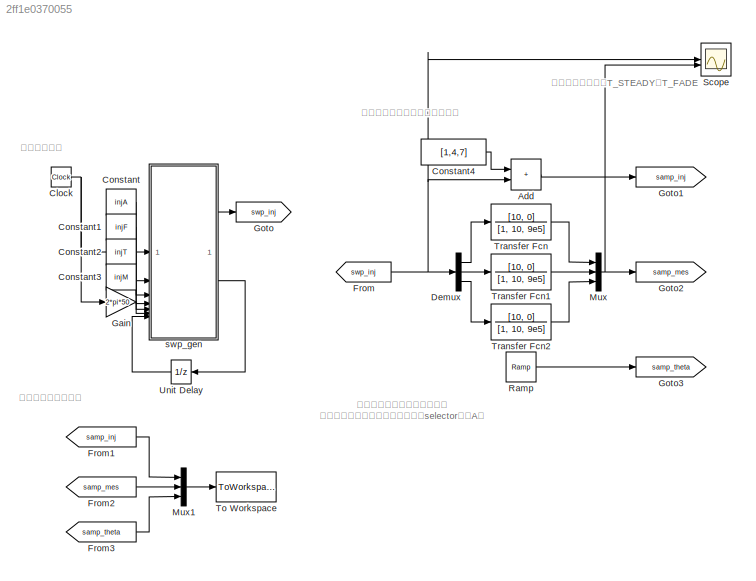
MODEL slx_2ff1e0370055
KIND model
CONFIG AbsTol = auto
CONFIG EnableMultiTasking = off
CONFIG FixedStep = 1e-6
CONFIG InitFcn = t_test = 1.14;
CONFIG MaxStep = 1e-6
CONFIG MinStep = auto
CONFIG RelTol = 1e-3
CONFIG SampleTimeConstraint = Unconstrained
CONFIG SolverName = FixedStepAuto
CONFIG StartTime = 0.0
CONFIG StopTime = runT
BLOCK [Sum] Add
  IconShape = rectangular
BLOCK [Clock] Clock
BLOCK [Constant] Constant
  Value = injA
BLOCK [Constant] Constant1
  Value = injF
BLOCK [Constant] Constant2
  Value = injT
BLOCK [Constant] Constant3
  Value = injM
BLOCK [Constant] Constant4
  Value = [1,4,7]
BLOCK [Demux] Demux
  Outputs = 3
BLOCK [From] From
  GotoTag = swp_inj
BLOCK [From] From1
  GotoTag = samp_inj
BLOCK [From] From2
  GotoTag = samp_mes
BLOCK [From] From3
  GotoTag = samp_theta
BLOCK [Gain] Gain
  Gain = 2*pi*50
BLOCK [Goto] Goto
  GotoTag = swp_inj
BLOCK [Goto] Goto1
  GotoTag = samp_inj
BLOCK [Goto] Goto2
  GotoTag = samp_mes
BLOCK [Goto] Goto3
  GotoTag = samp_theta
BLOCK [Mux] Mux
  DisplayOption = bar
  Inputs = 3
BLOCK [Mux] Mux1
  DisplayOption = bar
  Inputs = 3
BLOCK [Reference] Ramp  REF=simulink/Sources/Ramp
  SourceBlock = simulink/Sources/Ramp
  SourceType = Ramp
BLOCK [Scope] Scope
  Commented = on
  Floating = off
  NumInputPorts = 2
  ScopeSpecificationString = Simulink.scopes.TimeScopeBlockCfg('CurrentConfiguration', extmgr.ConfigurationSet(extmgr.Configuration('Core','General UI',true),extmgr.Configuration('Core','Source UI',true),extmgr.Configuration('Sources','WiredSimulink',true),extmgr.Configuration('Visuals','Time Domain',true,'SerializedDisplays',{struct('MinYLimReal','-3.94693','MaxYLimReal','4.06742','YLabelReal','','MinYLimMag','0.00000','MaxY...<+2271ch>
BLOCK [ToWorkspace] To Workspace
  FixptAsFi = on
  MaxDataPoints = inf
  SampleTime = -1
  SaveFormat = Structure With Time
  VariableName = freq_swp
BLOCK [TransferFcn] Transfer Fcn
  Denominator = [1, 10, 9e5]
  Numerator = [10, 0]
BLOCK [TransferFcn] Transfer Fcn1
  Denominator = [1, 10, 9e5]
  Numerator = [10, 0]
BLOCK [TransferFcn] Transfer Fcn2
  Denominator = [1, 10, 9e5]
  Numerator = [10, 0]
BLOCK [UnitDelay] Unit Delay
  HasFrameUpgradeWarning = on
  InitialCondition = 1
  SampleTime = -1
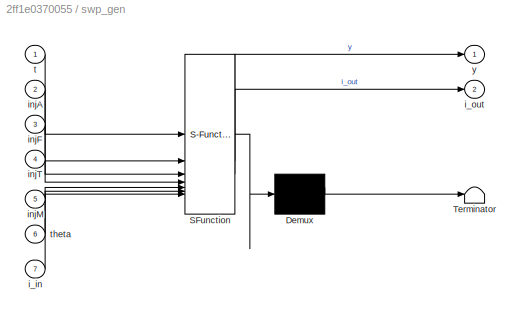
BLOCK [SubSystem] swp_gen
  ErrorFcn = Stateflow.Translate.translate
  PermitHierarchicalResolution = ExplicitOnly
  SFBlockType = MATLAB Function
  TreatAsAtomicUnit = on
BLOCK [Demux] swp_gen/ Demux 
  Outputs = 1
BLOCK [S-Function] swp_gen/ SFunction 
  EnableBusSupport = on
  FunctionName = sf_sfun
  PortCounts = [7 3]
  SFcnIsStateOwnerBlock = off
  SFunctionDeploymentMode = off
  Tag = Stateflow S-Function 2
BLOCK [Terminator] swp_gen/ Terminator 
BLOCK [Inport] swp_gen/i_in
  Port = 7
BLOCK [Outport] swp_gen/i_out
  Port = 2
BLOCK [Inport] swp_gen/injA
  Port = 2
BLOCK [Inport] swp_gen/injF
  Port = 3
BLOCK [Inport] swp_gen/injM
  Port = 5
BLOCK [Inport] swp_gen/injT
  Port = 4
BLOCK [Inport] swp_gen/t
BLOCK [Inport] swp_gen/theta
  Port = 6
BLOCK [Outport] swp_gen/y
ANNOTATION (root): 扫频使用的测量环节
ANNOTATION (root): 扰动注入固定为三相的信号。 如果你需要用单相注入，请加一个selector取用A相
ANNOTATION (root): 扰动注入至的，假设的被测系统
ANNOTATION (root): 扰动生成环节
ANNOTATION (root): 测试用。用来估计T_STEADY和T_FADE
LINE Add:1 -> Goto1:1
NET Clock:1 -> Gain:1, swp_gen:1
LINE Constant1:1 -> swp_gen:3
LINE Constant2:1 -> swp_gen:4
LINE Constant3:1 -> swp_gen:5
LINE Constant4:1 -> Add:1
LINE Constant:1 -> swp_gen:2
LINE Demux:1 -> Transfer Fcn:1
LINE Demux:2 -> Transfer Fcn1:1
LINE Demux:3 -> Transfer Fcn2:1
LINE From1:1 -> Mux1:1
LINE From2:1 -> Mux1:2
LINE From3:1 -> Mux1:3
NET From:1 -> Add:2, Demux:1, Scope:1
LINE Gain:1 -> swp_gen:6
LINE Mux1:1 -> To Workspace:1
NET Mux:1 -> Goto2:1, Scope:2
LINE Ramp:1 -> Goto3:1
LINE Transfer Fcn1:1 -> Mux:2
LINE Transfer Fcn2:1 -> Mux:3
LINE Transfer Fcn:1 -> Mux:1
LINE Unit Delay:1 -> swp_gen:7
LINE swp_gen:1 -> Goto:1
LINE swp_gen:2 -> Unit Delay:1
note: NET lines group one-source signal fan-out (src -> all destinations, sorted); 1:1 wires keep LINE
CHART swp_gen states=1 transitions=1
  STATE_LABEL 'eML_blk_kernel()'
  STATE_LABEL 'SCRIPT:\nfunction [y, i_out] = fcn(t, injA, injF, injT, injM, theta, i_in)\n%   t (1x1 double) 当前运行时刻\n%   injA (NxM double) 小信号扰动源的幅值，N为时域关键帧数，M为同时的扫频点数\n%   injF (NxM double) 小信号扰动源的频率\n%   injT (Nx1 double) 小信号扰动源开始作用的时间帧\n%   injM (Nx1 int32) 注入模式\n%   i_in (1x1) 上一拍的"行"号\n\n% 注意：矩阵[1,2,3; 4,5,6; 7,8,9]输入matlab function block时，会被自动变成列向量[1;4;7;2;5;8;3;6;9]。\n% 所以这里的编程都按照对原矩阵取值的思路，变换到列向量下进行。\n% 比如，对N行M列的矩阵...<+2236ch>'
CHART  states=0 transitions=0
